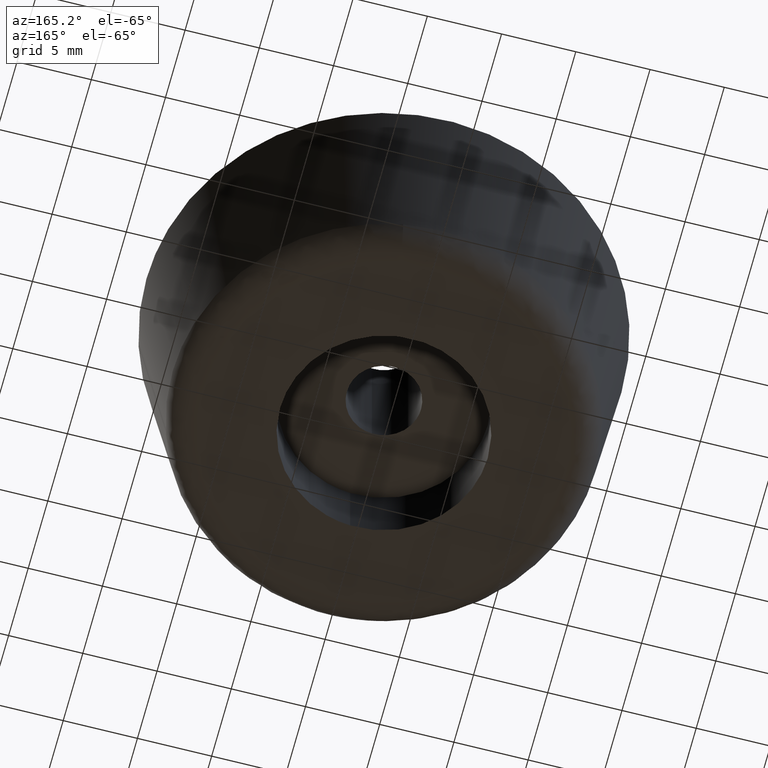
[diagram: clean part render]
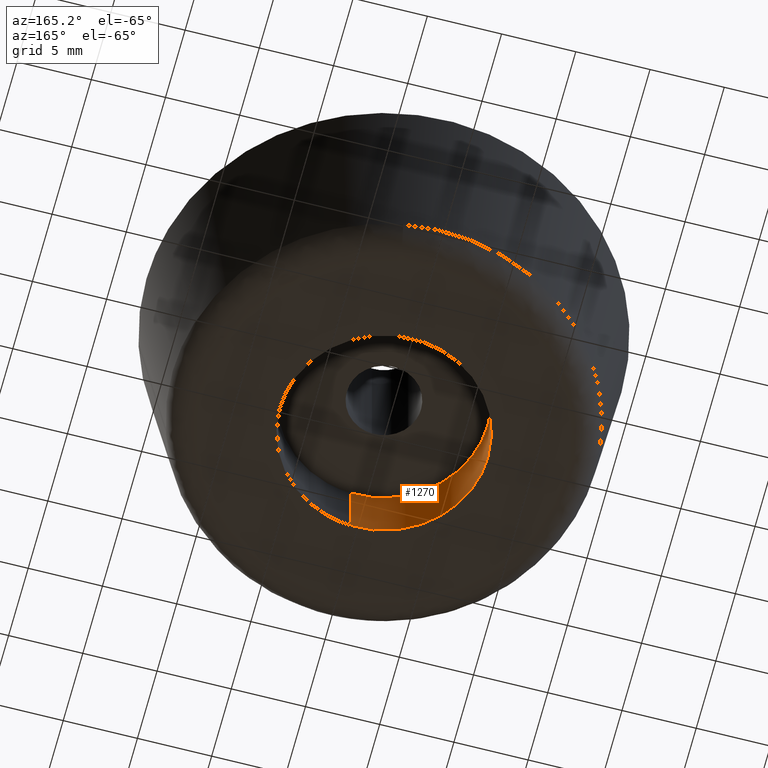
[diagram: same view with one face highlighted and labeled with its STEP entity id]
A machine part, auxiliary view. The second image highlights one B-rep face of the part: STEP entity #1270.
In plain terms, the highlighted face is a freeform B-spline surface patch.
Its self-contained STEP definition (entity closure, byte-faithful):
#1107=CARTESIAN_POINT('',(-0.826232407674893,6.951067544518226,7.305849E-014));
#1108=VERTEX_POINT('',#1107);
#1126=CARTESIAN_POINT('',(0.427328470493930,-6.986944280454582,4.651834E-014));
#1127=VERTEX_POINT('',#1126);
#1141=CARTESIAN_POINT('',(0.427328609956511,-6.986944271925134,5.0));
#1142=VERTEX_POINT('',#1141);
#1143=CARTESIAN_POINT('',(0.427328609956511,-6.986944271925134,5.0));
#1144=CARTESIAN_POINT('',(0.427328470493930,-6.986944280454582,4.651834E-014));
#1145=QUASI_UNIFORM_CURVE('',1,(#1143,#1144),.UNSPECIFIED.,.F.,.U.);
#1146=EDGE_CURVE('',#1142,#1127,#1145,.T.);
#1163=CARTESIAN_POINT('',(-0.826232496864986,6.951067533916820,5.0));
#1164=VERTEX_POINT('',#1163);
#1180=CARTESIAN_POINT('',(-0.826232496864986,6.951067533916820,5.0));
#1181=CARTESIAN_POINT('',(-0.826232407674893,6.951067544518226,7.305849E-014));
#1182=QUASI_UNIFORM_CURVE('',1,(#1180,#1181),.UNSPECIFIED.,.F.,.U.);
#1183=EDGE_CURVE('',#1164,#1108,#1182,.T.);
#1188=CARTESIAN_POINT('',(0.427339776743999,-6.986943588953067,5.125000000000001));
#1189=CARTESIAN_POINT('',(-6.559603812209068,-7.414283365697066,5.125000000000001));
#1190=CARTESIAN_POINT('',(-6.986943588953067,-0.427339776743999,5.125000000000001));
#1191=CARTESIAN_POINT('',(-7.390503377127691,6.170804435876506,5.125000000000001));
#1192=CARTESIAN_POINT('',(-0.826239642597309,6.951066684545665,5.125000000000002));
#1193=CARTESIAN_POINT('',(0.427339776743999,-6.986943588953067,-0.128125000000000));
#1194=CARTESIAN_POINT('',(-6.559603812209068,-7.414283365697066,-0.128125000000000));
#1195=CARTESIAN_POINT('',(-6.986943588953067,-0.427339776743999,-0.128125000000000));
#1196=CARTESIAN_POINT('',(-7.390503377127691,6.170804435876506,-0.128125000000000));
#1197=CARTESIAN_POINT('',(-0.826239642597309,6.951066684545665,-0.128125000000000));
#1205=(BOUNDED_SURFACE()B_SPLINE_SURFACE(2,1,((#1188,#1193),(#1189,#1194),(#1190,#1195),(#1191,#1196),(#1192,#1197)),.UNSPECIFIED.,.F.,.F.,.U.)B_SPLINE_SURFACE_WITH_KNOTS((3,2,3),(2,2),(0.0,11.597979746446660,22.732040303035451),(0.0,5.253125000000001),.UNSPECIFIED.)GEOMETRIC_REPRESENTATION_ITEM()RATIONAL_B_SPLINE_SURFACE(((1.0,1.0),(0.707106781186548,0.707106781186548),(1.0,1.0),(0.718822509939086,0.718822509939086),(0.977505800795127,0.977505800795127)))REPRESENTATION_ITEM('')SURFACE());
#1206=CARTESIAN_POINT('',(-7.0,0.0,0.0));
#1207=VERTEX_POINT('',#1206);
#1208=CARTESIAN_POINT('',(-7.0,0.0,0.0));
#1209=CARTESIAN_POINT('',(-7.000000000000001,6.217228198326260,0.0));
#1210=CARTESIAN_POINT('',(-0.826232407674893,6.951067544518226,7.305849E-014));
#1218=(BOUNDED_CURVE()B_SPLINE_CURVE(2,(#1208,#1209,#1210),.UNSPECIFIED.,.F.,.U.)B_SPLINE_CURVE_WITH_KNOTS((3,3),(0.0,0.229562649420369),.UNSPECIFIED.)CURVE()GEOMETRIC_REPRESENTATION_ITEM()RATIONAL_B_SPLINE_CURVE((1.0,0.731050626767696,0.956027098968635))REPRESENTATION_ITEM(''));
#1219=EDGE_CURVE('',#1207,#1108,#1218,.T.);
#1220=ORIENTED_EDGE('',*,*,#1219,.T.);
#1221=ORIENTED_EDGE('',*,*,#1183,.F.);
#1222=CARTESIAN_POINT('',(-7.0,0.0,5.0));
#1223=VERTEX_POINT('',#1222);
#1224=CARTESIAN_POINT('',(-7.0,0.0,5.0));
#1225=CARTESIAN_POINT('',(-6.999999999999999,6.217228117990596,4.999999999999999));
#1226=CARTESIAN_POINT('',(-0.826232496864986,6.951067533916821,5.0));
#1234=(BOUNDED_CURVE()B_SPLINE_CURVE(2,(#1224,#1225,#1226),.UNSPECIFIED.,.F.,.U.)B_SPLINE_CURVE_WITH_KNOTS((3,3),(0.0,0.229562647251865),.UNSPECIFIED.)CURVE()GEOMETRIC_REPRESENTATION_ITEM()RATIONAL_B_SPLINE_CURVE((1.0,0.731050629308256,0.956027094718271))REPRESENTATION_ITEM(''));
#1235=EDGE_CURVE('',#1223,#1164,#1234,.T.);
#1236=ORIENTED_EDGE('',*,*,#1235,.F.);
#1237=CARTESIAN_POINT('',(0.427328609956511,-6.986944271925134,5.0));
#1238=CARTESIAN_POINT('',(0.213863744041770,-6.999999999999998,5.000000000000001));
#1239=CARTESIAN_POINT('',(0.0,-7.0,5.0));
#1240=CARTESIAN_POINT('',(-6.999999999999999,-6.999999999999999,4.999999999999999));
#1241=CARTESIAN_POINT('',(-7.0,0.0,5.0));
#1249=(BOUNDED_CURVE()B_SPLINE_CURVE(2,(#1237,#1238,#1239,#1240,#1241),.UNSPECIFIED.,.F.,.U.)B_SPLINE_CURVE_WITH_KNOTS((3,2,3),(0.739333238012583,0.750000000000000,1.0),.UNSPECIFIED.)CURVE()GEOMETRIC_REPRESENTATION_ITEM()RATIONAL_B_SPLINE_CURVE((0.976072632702837,0.987503110988754,1.0,0.707106781186547,1.0))REPRESENTATION_ITEM(''));
#1250=EDGE_CURVE('',#1142,#1223,#1249,.T.);
#1251=ORIENTED_EDGE('',*,*,#1250,.F.);
#1252=ORIENTED_EDGE('',*,*,#1146,.T.);
#1253=CARTESIAN_POINT('',(0.427328470493929,-6.986944280454582,4.651834E-014));
#1254=CARTESIAN_POINT('',(0.213863674114976,-7.000000000000001,0.0));
#1255=CARTESIAN_POINT('',(0.0,-7.0,0.0));
#1256=CARTESIAN_POINT('',(-6.999999999999999,-6.999999999999999,0.0));
#1257=CARTESIAN_POINT('',(-7.0,0.0,0.0));
#1265=(BOUNDED_CURVE()B_SPLINE_CURVE(2,(#1253,#1254,#1255,#1256,#1257),.UNSPECIFIED.,.F.,.U.)B_SPLINE_CURVE_WITH_KNOTS((3,2,3),(0.739333241456697,0.750000000000000,1.0),.UNSPECIFIED.)CURVE()GEOMETRIC_REPRESENTATION_ITEM()RATIONAL_B_SPLINE_CURVE((0.976072640084247,0.987503115023785,1.0,0.707106781186547,1.0))REPRESENTATION_ITEM(''));
#1266=EDGE_CURVE('',#1127,#1207,#1265,.T.);
#1267=ORIENTED_EDGE('',*,*,#1266,.T.);
#1268=EDGE_LOOP('',(#1220,#1221,#1236,#1251,#1252,#1267));
#1269=FACE_OUTER_BOUND('',#1268,.T.);
#1270=ADVANCED_FACE('',(#1269),#1205,.F.);